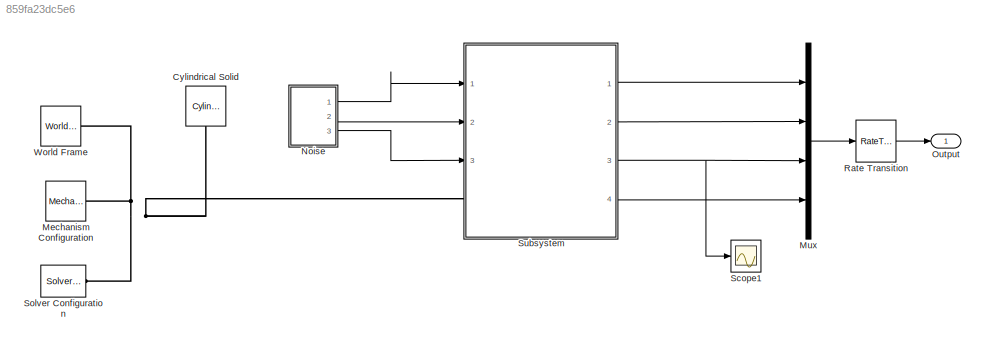
MODEL slx_859fa23dc5e6
KIND model
CONFIG AbsTol = auto
CONFIG EnableMultiTasking = off
CONFIG FixedStep = auto
CONFIG InitFcn = seed1 = randi(100000);\nseed2 = randi(200000);
CONFIG MaxStep = auto
CONFIG MinStep = auto
CONFIG RelTol = 1e-3
CONFIG SampleTimeConstraint = Unconstrained
CONFIG SolverName = VariableStepAuto
CONFIG StartTime = 0.0
CONFIG StopTime = 60
BLOCK [Reference] Cylindrical Solid  REF=sm_lib/Body Elements/Cylindrical Solid
  NameLocation = left
  Ports = [0, 0, 0, 0, 0, 0, 1]
  SourceBlock = sm_lib/Body Elements/Cylindrical Solid
  SourceProductBaseCode = MS
  SourceType = Cylindrical Solid
BLOCK [Reference] Mechanism Configuration  REF=sm_lib/Utilities/Mechanism
Configuration
  Ports = [0, 0, 0, 0, 0, 0, 1]
  SourceBlock = sm_lib/Utilities/Mechanism\nConfiguration
  SourceProductBaseCode = MS
  SourceType = Mechanism\nConfiguration
BLOCK [Mux] Mux
  DisplayOption = bar
  Ports = [4, 1]
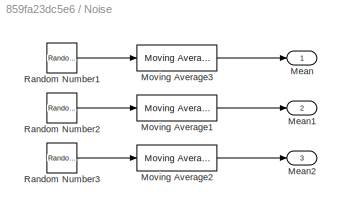
BLOCK [SubSystem] Noise
  Ports = [0, 3]
  RequestExecContextInheritance = off
BLOCK [Outport] Noise/ Mean
BLOCK [Outport] Noise/ Mean1
  Port = 2
BLOCK [Outport] Noise/ Mean2
  Port = 3
BLOCK [Reference] Noise/Moving Average1  REF=eeGeneralControl/Moving Average
  Ports = [1, 1]
  SourceBlock = eeGeneralControl/Moving Average
  SourceProductBaseCode = PS
  SourceType = Moving Average
BLOCK [Reference] Noise/Moving Average2  REF=eeGeneralControl/Moving Average
  Ports = [1, 1]
  SourceBlock = eeGeneralControl/Moving Average
  SourceProductBaseCode = PS
  SourceType = Moving Average
BLOCK [Reference] Noise/Moving Average3  REF=eeGeneralControl/Moving Average
  Ports = [1, 1]
  SourceBlock = eeGeneralControl/Moving Average
  SourceProductBaseCode = PS
  SourceType = Moving Average
BLOCK [RandomNumber] Noise/Random Number1
  SampleTime = nS
  Seed = seedX
  Variance = nH
BLOCK [RandomNumber] Noise/Random Number2
  SampleTime = nS
  Seed = seedY
  Variance = nH
BLOCK [RandomNumber] Noise/Random Number3
  SampleTime = nS
  Seed = seedZ
  Variance = nV
BLOCK [Outport] Output
BLOCK [RateTransition] Rate Transition
  OutPortSampleTime = 1/40
BLOCK [Scope] Scope1
  Floating = off
  NumInputPorts = 1
  Ports = [1]
  ScopeSpecificationString = Simulink.scopes.TimeScopeBlockCfg('CurrentConfiguration', extmgr.ConfigurationSet(extmgr.Configuration('Core','General UI',true),extmgr.Configuration('Core','Source UI',true),extmgr.Configuration('Sources','WiredSimulink',true,'DataLoggingVariableName','ScopeData1'),extmgr.Configuration('Visuals','Time Domain',true,'SerializedDisplays',{struct('MinYLimReal','-0.37443','MaxYLimReal','3.34636','YLab...<+1370ch>
BLOCK [Reference] Solver Configuration  REF=nesl_utility/Solver
Configuration
  Ports = [0, 0, 0, 0, 0, 0, 1]
  SourceBlock = nesl_utility/Solver\nConfiguration
  SourceProductBaseCode = SS
  SourceType = Solver\nConfiguration
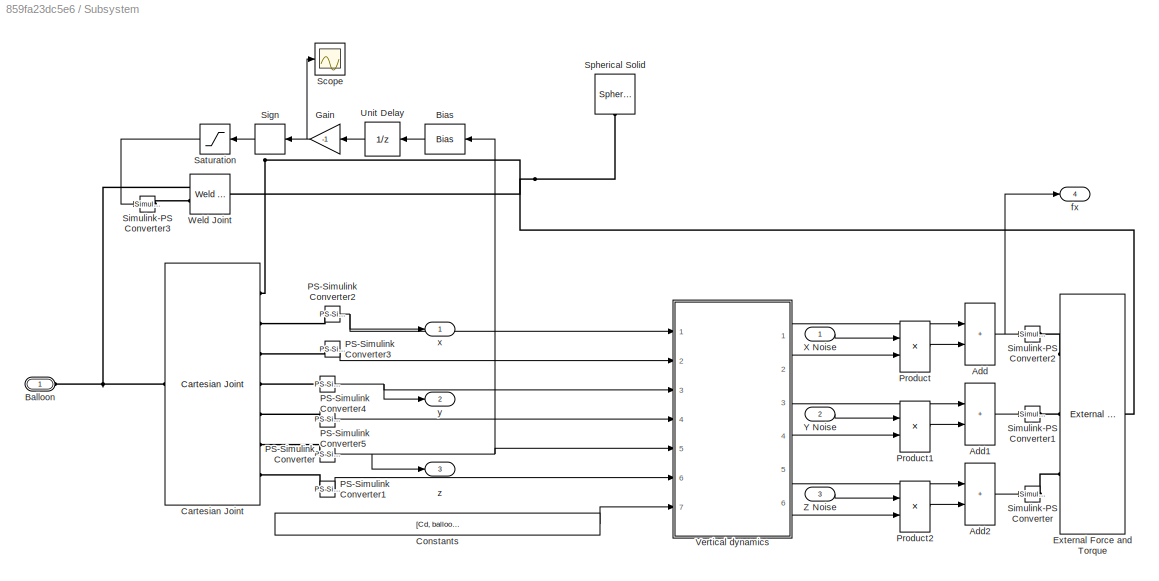
BLOCK [SubSystem] Subsystem
  Ports = [3, 4, 0, 0, 0, 1]
  RequestExecContextInheritance = off
BLOCK [Sum] Subsystem/Add
  IconShape = rectangular
  Ports = [2, 1]
BLOCK [Sum] Subsystem/Add1
  IconShape = rectangular
  Ports = [2, 1]
BLOCK [Sum] Subsystem/Add2
  IconShape = rectangular
  Ports = [2, 1]
BLOCK [PMIOPort] Subsystem/Balloon
  Side = Left
BLOCK [Bias] Subsystem/Bias
  Bias = 1/1000
  NameLocation = top
  SaturateOnIntegerOverflow = off
BLOCK [Reference] Subsystem/Cartesian Joint  REF=sm_lib/Joints/Cartesian
Joint
  Ports = [0, 0, 0, 0, 0, 1, 7]
  SourceBlock = sm_lib/Joints/Cartesian\nJoint
  SourceProductBaseCode = MS
  SourceType = Cartesian\nJoint
BLOCK [Constant] Subsystem/Constants
  Value = [Cd, balloonRadius, nozzleRadius, theta, V0, normalScaling]
BLOCK [Reference] Subsystem/External Force and Torque  REF=sm_lib/Forces and
Torques/External Force
and Torque
  Ports = [0, 0, 0, 0, 0, 3, 1]
  SourceBlock = sm_lib/Forces and\nTorques/External Force\nand Torque
  SourceProductBaseCode = MS
  SourceType = External Force\nand Torque
BLOCK [Gain] Subsystem/Gain
  Gain = -1
  NameLocation = top
BLOCK [Reference] Subsystem/PS-Simulink Converter  REF=nesl_utility/PS-Simulink
Converter
  Ports = [0, 1, 0, 0, 0, 1]
  SourceBlock = nesl_utility/PS-Simulink\nConverter
  SourceProductBaseCode = SS
  SourceType = PS-Simulink\nConverter
BLOCK [Reference] Subsystem/PS-Simulink Converter1  REF=nesl_utility/PS-Simulink
Converter
  Ports = [0, 1, 0, 0, 0, 1]
  SourceBlock = nesl_utility/PS-Simulink\nConverter
  SourceProductBaseCode = SS
  SourceType = PS-Simulink\nConverter
BLOCK [Reference] Subsystem/PS-Simulink Converter2  REF=nesl_utility/PS-Simulink
Converter
  Ports = [0, 1, 0, 0, 0, 1]
  SourceBlock = nesl_utility/PS-Simulink\nConverter
  SourceProductBaseCode = SS
  SourceType = PS-Simulink\nConverter
BLOCK [Reference] Subsystem/PS-Simulink Converter3  REF=nesl_utility/PS-Simulink
Converter
  Ports = [0, 1, 0, 0, 0, 1]
  SourceBlock = nesl_utility/PS-Simulink\nConverter
  SourceProductBaseCode = SS
  SourceType = PS-Simulink\nConverter
BLOCK [Reference] Subsystem/PS-Simulink Converter4  REF=nesl_utility/PS-Simulink
Converter
  Ports = [0, 1, 0, 0, 0, 1]
  SourceBlock = nesl_utility/PS-Simulink\nConverter
  SourceProductBaseCode = SS
  SourceType = PS-Simulink\nConverter
BLOCK [Reference] Subsystem/PS-Simulink Converter5  REF=nesl_utility/PS-Simulink
Converter
  Ports = [0, 1, 0, 0, 0, 1]
  SourceBlock = nesl_utility/PS-Simulink\nConverter
  SourceProductBaseCode = SS
  SourceType = PS-Simulink\nConverter
BLOCK [Product] Subsystem/Product
  Ports = [2, 1]
BLOCK [Product] Subsystem/Product1
  Ports = [2, 1]
BLOCK [Product] Subsystem/Product2
  Ports = [2, 1]
BLOCK [Saturate] Subsystem/Saturation
  LowerLimit = -1
  NameLocation = top
  UpperLimit = 0
BLOCK [Scope] Subsystem/Scope
  Floating = off
  NumInputPorts = 1
  Ports = [1]
  ScopeSpecificationString = Simulink.scopes.TimeScopeBlockCfg('CurrentConfiguration', extmgr.ConfigurationSet(extmgr.Configuration('Core','General UI',true),extmgr.Configuration('Core','Source UI',true),extmgr.Configuration('Sources','WiredSimulink',true,'DataLoggingVariableName','ScopeData2'),extmgr.Configuration('Visuals','Time Domain',true,'SerializedDisplays',{struct('MinYLimReal','-1.35309','MaxYLimReal','0.15034','YLab...<+1393ch>
BLOCK [Signum] Subsystem/Sign
  NameLocation = top
BLOCK [Reference] Subsystem/Simulink-PS Converter  REF=nesl_utility/Simulink-PS
Converter
  Ports = [1, 0, 0, 0, 0, 0, 1]
  SourceBlock = nesl_utility/Simulink-PS\nConverter
  SourceProductBaseCode = SS
  SourceType = Simulink-PS\nConverter
BLOCK [Reference] Subsystem/Simulink-PS Converter1  REF=nesl_utility/Simulink-PS
Converter
  Ports = [1, 0, 0, 0, 0, 0, 1]
  SourceBlock = nesl_utility/Simulink-PS\nConverter
  SourceProductBaseCode = SS
  SourceType = Simulink-PS\nConverter
BLOCK [Reference] Subsystem/Simulink-PS Converter2  REF=nesl_utility/Simulink-PS
Converter
  Ports = [1, 0, 0, 0, 0, 0, 1]
  SourceBlock = nesl_utility/Simulink-PS\nConverter
  SourceProductBaseCode = SS
  SourceType = Simulink-PS\nConverter
BLOCK [Reference] Subsystem/Simulink-PS Converter3  REF=nesl_utility/Simulink-PS
Converter
  Ports = [1, 0, 0, 0, 0, 0, 1]
  SourceBlock = nesl_utility/Simulink-PS\nConverter
  SourceProductBaseCode = SS
  SourceType = Simulink-PS\nConverter
BLOCK [Reference] Subsystem/Spherical Solid  REF=sm_lib/Body Elements/Spherical Solid
  NameLocation = left
  Ports = [0, 0, 0, 0, 0, 0, 1]
  SourceBlock = sm_lib/Body Elements/Spherical Solid
  SourceProductBaseCode = MS
  SourceType = Spherical Solid
BLOCK [UnitDelay] Subsystem/Unit Delay
  HasFrameUpgradeWarning = on
  NameLocation = top
  SampleTime = 0.01
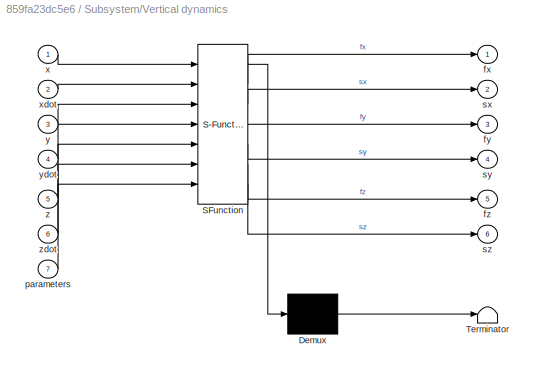
BLOCK [SubSystem] Subsystem/Vertical dynamics
  ErrorFcn = Stateflow.Translate.translate
  PermitHierarchicalResolution = ExplicitOnly
  Ports = [7, 6]
  RequestExecContextInheritance = off
  SFBlockType = MATLAB Function
  TreatAsAtomicUnit = on
BLOCK [Demux] Subsystem/Vertical dynamics/ Demux 
  Outputs = 1
  Ports = [1, 1]
BLOCK [S-Function] Subsystem/Vertical dynamics/ SFunction 
  EnableBusSupport = on
  FunctionName = sf_sfun
  PortCounts = [7 7]
  Ports = [7, 7]
  SFcnIsStateOwnerBlock = off
  SFunctionDeploymentMode = off
  Tag = Stateflow S-Function 2
BLOCK [Terminator] Subsystem/Vertical dynamics/ Terminator 
BLOCK [Outport] Subsystem/Vertical dynamics/fx
BLOCK [Outport] Subsystem/Vertical dynamics/fy
  Port = 3
BLOCK [Outport] Subsystem/Vertical dynamics/fz
  Port = 5
BLOCK [Inport] Subsystem/Vertical dynamics/parameters
  Port = 7
BLOCK [Outport] Subsystem/Vertical dynamics/sx
  Port = 2
BLOCK [Outport] Subsystem/Vertical dynamics/sy
  Port = 4
BLOCK [Outport] Subsystem/Vertical dynamics/sz
  Port = 6
BLOCK [Inport] Subsystem/Vertical dynamics/x
BLOCK [Inport] Subsystem/Vertical dynamics/xdot
  Port = 2
BLOCK [Inport] Subsystem/Vertical dynamics/y
  Port = 3
BLOCK [Inport] Subsystem/Vertical dynamics/ydot
  Port = 4
BLOCK [Inport] Subsystem/Vertical dynamics/z
  Port = 5
BLOCK [Inport] Subsystem/Vertical dynamics/zdot
  Port = 6
BLOCK [Reference] Subsystem/Weld Joint  REF=sm_lib/Joints/Weld Joint
  Ports = [0, 0, 0, 0, 0, 2, 1]
  SourceBlock = sm_lib/Joints/Weld Joint
  SourceProductBaseCode = MS
  SourceType = Weld Joint
BLOCK [Inport] Subsystem/X Noise
BLOCK [Inport] Subsystem/Y Noise
  Port = 2
BLOCK [Inport] Subsystem/Z Noise
  Port = 3
BLOCK [Outport] Subsystem/fx
  Port = 4
BLOCK [Outport] Subsystem/x
BLOCK [Outport] Subsystem/y
  Port = 2
BLOCK [Outport] Subsystem/z
  Port = 3
BLOCK [Reference] World Frame  REF=sm_lib/Frames and
Transforms/World Frame
  Ports = [0, 0, 0, 0, 0, 0, 1]
  SourceBlock = sm_lib/Frames and\nTransforms/World Frame
  SourceProductBaseCode = MS
  SourceType = World Frame
LINE Mux:1 -> Rate Transition:1
LINE Noise/Moving Average1:1 -> Noise/ Mean1:1
LINE Noise/Moving Average2:1 -> Noise/ Mean2:1
LINE Noise/Moving Average3:1 -> Noise/ Mean:1
LINE Noise/Random Number1:1 -> Noise/Moving Average3:1
LINE Noise/Random Number2:1 -> Noise/Moving Average1:1
LINE Noise/Random Number3:1 -> Noise/Moving Average2:1
LINE Noise:1 -> Subsystem:1
LINE Noise:2 -> Subsystem:2
LINE Noise:3 -> Subsystem:3
LINE Rate Transition:1 -> Output:1
LINE Subsystem/Add1:1 -> Subsystem/Simulink-PS Converter1:1
LINE Subsystem/Add2:1 -> Subsystem/Simulink-PS Converter:1
NET Subsystem/Add:1 -> Subsystem/Simulink-PS Converter2:1, Subsystem/fx:1
LINE Subsystem/Bias:1 -> Subsystem/Unit Delay:1
LINE Subsystem/Constants:1 -> Subsystem/Vertical dynamics:7
NET Subsystem/Gain:1 -> Subsystem/Scope:1, Subsystem/Sign:1
LINE Subsystem/PS-Simulink Converter1:1 -> Subsystem/Vertical dynamics:6
NET Subsystem/PS-Simulink Converter2:1 -> Subsystem/Vertical dynamics:1, Subsystem/x:1
LINE Subsystem/PS-Simulink Converter3:1 -> Subsystem/Vertical dynamics:2
NET Subsystem/PS-Simulink Converter4:1 -> Subsystem/Vertical dynamics:3, Subsystem/y:1
LINE Subsystem/PS-Simulink Converter5:1 -> Subsystem/Vertical dynamics:4
NET Subsystem/PS-Simulink Converter:1 -> Subsystem/Bias:1, Subsystem/Vertical dynamics:5, Subsystem/z:1
LINE Subsystem/Product1:1 -> Subsystem/Add1:2
LINE Subsystem/Product2:1 -> Subsystem/Add2:2
LINE Subsystem/Product:1 -> Subsystem/Add:2
LINE Subsystem/Saturation:1 -> Subsystem/Simulink-PS Converter3:1
LINE Subsystem/Sign:1 -> Subsystem/Saturation:1
LINE Subsystem/Unit Delay:1 -> Subsystem/Gain:1
LINE Subsystem/Vertical dynamics:1 -> Subsystem/Add:1
LINE Subsystem/Vertical dynamics:2 -> Subsystem/Product:2
LINE Subsystem/Vertical dynamics:3 -> Subsystem/Add1:1
LINE Subsystem/Vertical dynamics:4 -> Subsystem/Product1:2
LINE Subsystem/Vertical dynamics:5 -> Subsystem/Add2:1
LINE Subsystem/Vertical dynamics:6 -> Subsystem/Product2:2
LINE Subsystem/X Noise:1 -> Subsystem/Product:1
LINE Subsystem/Y Noise:1 -> Subsystem/Product1:1
LINE Subsystem/Z Noise:1 -> Subsystem/Product2:1
LINE Subsystem:1 -> Mux:1
LINE Subsystem:2 -> Mux:2
NET Subsystem:3 -> Mux:3, Scope1:1
LINE Subsystem:4 -> Mux:4
PNET net1: Cylindrical Solid:RConn1 -- Mechanism Configuration:RConn1 -- Solver Configuration:RConn1 -- Subsystem:LConn1 -- World Frame:RConn1
PNET net2: Subsystem/Balloon:RConn1 -- Subsystem/Cartesian Joint:LConn1 -- Subsystem/Weld Joint:LConn1
PNET net3: Subsystem/Cartesian Joint:RConn1 -- Subsystem/External Force and Torque:RConn1 -- Subsystem/Spherical Solid:RConn1 -- Subsystem/Weld Joint:RConn1
PLINE Subsystem/Cartesian Joint:RConn2 -- Subsystem/PS-Simulink Converter2:LConn1
PLINE Subsystem/Cartesian Joint:RConn3 -- Subsystem/PS-Simulink Converter3:LConn1
PLINE Subsystem/Cartesian Joint:RConn4 -- Subsystem/PS-Simulink Converter4:LConn1
PLINE Subsystem/Cartesian Joint:RConn5 -- Subsystem/PS-Simulink Converter5:LConn1
PLINE Subsystem/Cartesian Joint:RConn6 -- Subsystem/PS-Simulink Converter:LConn1
PLINE Subsystem/Cartesian Joint:RConn7 -- Subsystem/PS-Simulink Converter1:LConn1
PLINE Subsystem/External Force and Torque:LConn1 -- Subsystem/Simulink-PS Converter2:RConn1
PLINE Subsystem/External Force and Torque:LConn2 -- Subsystem/Simulink-PS Converter1:RConn1
PLINE Subsystem/External Force and Torque:LConn3 -- Subsystem/Simulink-PS Converter:RConn1
PLINE Subsystem/Simulink-PS Converter3:RConn1 -- Subsystem/Weld Joint:LConn2
note: NET lines group one-source signal fan-out (src -> all destinations, sorted); 1:1 wires keep LINE; PNET lines group multi-terminal physical nets as a canonical sorted terminal list (undirected conserving connections); 2-terminal nets keep the pairwise PLINE form
CHART Subsystem/Vertical dynamics states=1 transitions=1
  STATE_LABEL 'eML_blk_kernel()'
  STATE_LABEL 'SCRIPT:\nfunction [fx,sx,fy,sy,fz,sz] = fcn(x,xdot,y,ydot,z,zdot,parameters)\n\nCd = parameters(1);\nrb = parameters(2);\nrn = parameters(3);\ntheta = deg2rad(parameters(4)); \nV0 = parameters(5); \nnormalScaling = parameters(6); \n\n%% Vertical forces\n\n%Horizontal plane displacement\n[rotation, rDisplacement] = cart2pol(x,y);\n\n%flow radius\nrFlow = rn+z*tan(theta);\n\n%Peak flow velocity\nmeanFlowVelocity = V0*...<+1241ch>'
CHART  states=0 transitions=0
